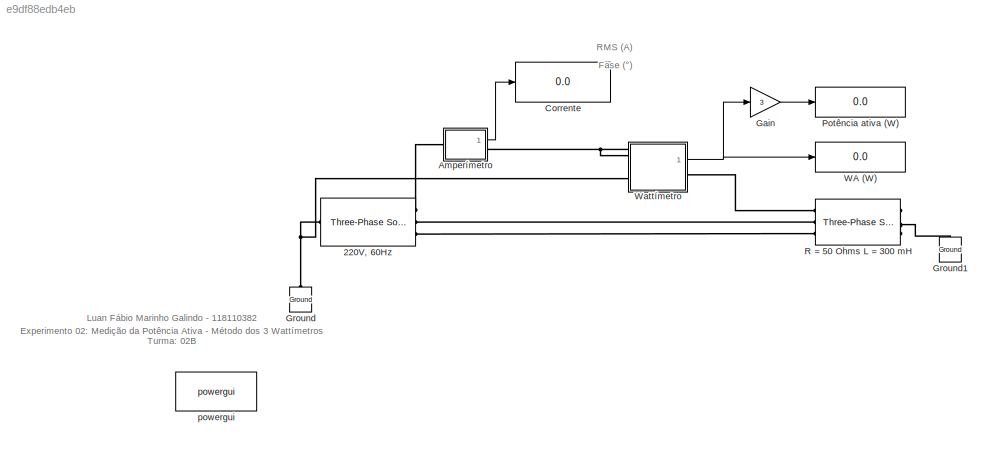
MODEL slx_e9df88edb4eb
KIND model
CONFIG AbsTol = auto
CONFIG EnableMultiTasking = off
CONFIG FixedStep = auto
CONFIG MaxStep = auto
CONFIG MinStep = auto
CONFIG RelTol = 1e-5
CONFIG SampleTimeConstraint = Unconstrained
CONFIG SolverName = ode23t
CONFIG StartTime = 0.0
CONFIG StopTime = 0.1
BLOCK [Reference] 220V, 60Hz  REF=spsThreePhaseSourceLib/Three-Phase Source
  Ports = [0, 0, 0, 0, 0, 1, 3]
  SourceBlock = spsThreePhaseSourceLib/Three-Phase Source
  SourceProductBaseCode = PS
  SourceType = Three-Phase Source
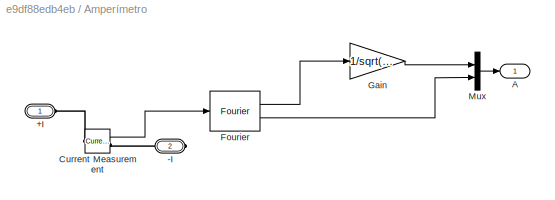
BLOCK [SubSystem] Amperímetro
  Ports = [0, 1, 0, 0, 0, 1, 1]
  RequestExecContextInheritance = off
BLOCK [PMIOPort] Amperímetro/+I
  Side = Left
BLOCK [PMIOPort] Amperímetro/-I
  Port = 2
  Side = Right
BLOCK [Outport] Amperímetro/A
BLOCK [Reference] Amperímetro/Current Measurement  REF=spsCurrentMeasurementLib/Current Measurement
  Ports = [0, 1, 0, 0, 0, 1, 1]
  SourceBlock = spsCurrentMeasurementLib/Current Measurement
  SourceProductBaseCode = PS
  SourceType = Current Measurement
  UserDataPersistent = on
BLOCK [Reference] Amperímetro/Fourier  REF=spsFourierLib/Fourier
  Ports = [1, 2]
  SourceBlock = spsFourierLib/Fourier
  SourceProductBaseCode = PS
  SourceType = Fourier
BLOCK [Gain] Amperímetro/Gain
  Gain = 1/sqrt(2)
BLOCK [Mux] Amperímetro/Mux
  DisplayOption = bar
  Inputs = 2
  Ports = [2, 1]
BLOCK [Display] Corrente
  Decimation = 1
  Format = bank
  Ports = [1]
BLOCK [Gain] Gain
  Gain = 3
BLOCK [Reference] Ground  REF=spsGroundLib/Ground
  NameLocation = right
  Ports = [0, 0, 0, 0, 0, 1]
  SourceBlock = spsGroundLib/Ground
  SourceProductBaseCode = PS
  SourceType = Ground
BLOCK [Reference] Ground1  REF=spsGroundLib/Ground
  NameLocation = right
  Ports = [0, 0, 0, 0, 0, 1]
  SourceBlock = spsGroundLib/Ground
  SourceProductBaseCode = PS
  SourceType = Ground
BLOCK [Display] Potência ativa (W)
  Decimation = 1
  Format = bank
  Ports = [1]
BLOCK [Reference] R = 50 Ohms L = 300 mH  REF=spsThreePhaseSeriesRLCBranchLib/Three-Phase
Series RLC Branch
  AttributesFormatString = \n
  Ports = [0, 0, 0, 0, 0, 3, 3]
  SourceBlock = spsThreePhaseSeriesRLCBranchLib/Three-Phase\nSeries RLC Branch
  SourceProductBaseCode = PS
  SourceType = Three-Phase Series RLC Branch
BLOCK [Display] WA (W)
  Decimation = 1
  Format = bank
  Ports = [1]
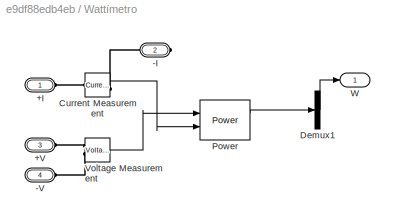
BLOCK [SubSystem] Wattímetro
  Ports = [0, 1, 0, 0, 0, 3, 1]
  RequestExecContextInheritance = off
BLOCK [PMIOPort] Wattímetro/+I
  Side = Left
BLOCK [PMIOPort] Wattímetro/+V
  Port = 3
  Side = Left
BLOCK [PMIOPort] Wattímetro/-I
  Port = 2
  Side = Right
BLOCK [PMIOPort] Wattímetro/-V
  Port = 4
  Side = Left
BLOCK [Reference] Wattímetro/Current Measurement  REF=spsCurrentMeasurementLib/Current Measurement
  Ports = [0, 1, 0, 0, 0, 1, 1]
  SourceBlock = spsCurrentMeasurementLib/Current Measurement
  SourceProductBaseCode = PS
  SourceType = Current Measurement
  UserDataPersistent = on
BLOCK [Demux] Wattímetro/Demux1
  Outputs = 1
  Ports = [1, 1]
BLOCK [Reference] Wattímetro/Power  REF=spsPowerLib/Power
  Ports = [2, 2]
  SourceBlock = spsPowerLib/Power
  SourceProductBaseCode = PS
  SourceType = Power
BLOCK [Reference] Wattímetro/Voltage Measurement  REF=spsVoltageMeasurementLib/Voltage Measurement
  Ports = [0, 1, 0, 0, 0, 2]
  SourceBlock = spsVoltageMeasurementLib/Voltage Measurement
  SourceProductBaseCode = PS
  SourceType = Voltage Measurement
  UserDataPersistent = on
BLOCK [Outport] Wattímetro/W
BLOCK [Reference] powergui   REF=spspowerguiLib/powergui
  Ports = []
  Priority = 1
  SourceBlock = spspowerguiLib/powergui
  SourceProductBaseCode = PS
  SourceType = PSB option menu block
ANNOTATION (root): Experimento 02: Medição da Potência Ativa - Método dos 3 Wattímetros Luan Fábio Marinho Galindo - 118110382 Turma: 02B
ANNOTATION (root): Fase (°)
ANNOTATION (root): RMS (A)
LINE Amperímetro/Current Measurement:1 -> Amperímetro/Fourier:1
LINE Amperímetro/Fourier:1 -> Amperímetro/Gain:1
LINE Amperímetro/Fourier:2 -> Amperímetro/Mux:2
LINE Amperímetro/Gain:1 -> Amperímetro/Mux:1
LINE Amperímetro/Mux:1 -> Amperímetro/A:1
LINE Amperímetro:1 -> Corrente:1
LINE Gain:1 -> Potência ativa (W):1
LINE Wattímetro/Current Measurement:1 -> Wattímetro/Power:2
LINE Wattímetro/Demux1:1 -> Wattímetro/W:1
LINE Wattímetro/Power:1 -> Wattímetro/Demux1:1
LINE Wattímetro/Voltage Measurement:1 -> Wattímetro/Power:1
NET Wattímetro:1 -> Gain:1, WA (W):1
PNET net1: 220V, 60Hz:LConn1 -- Ground:LConn1 -- Wattímetro:LConn3
PLINE 220V, 60Hz:RConn1 -- Amperímetro:LConn1
PLINE 220V, 60Hz:RConn2 -- R = 50 Ohms L = 300 mH:LConn2
PLINE 220V, 60Hz:RConn3 -- R = 50 Ohms L = 300 mH:LConn3
PLINE Amperímetro/+I:RConn1 -- Amperímetro/Current Measurement:LConn1
PLINE Amperímetro/-I:RConn1 -- Amperímetro/Current Measurement:RConn1
PNET net2: Amperímetro:RConn1 -- Wattímetro:LConn1 -- Wattímetro:LConn2
PNET net3: Ground1:LConn1 -- R = 50 Ohms L = 300 mH:RConn1 -- R = 50 Ohms L = 300 mH:RConn2 -- R = 50 Ohms L = 300 mH:RConn3
PLINE R = 50 Ohms L = 300 mH:LConn1 -- Wattímetro:RConn1
PLINE Wattímetro/+I:RConn1 -- Wattímetro/Current Measurement:LConn1
PLINE Wattímetro/+V:RConn1 -- Wattímetro/Voltage Measurement:LConn1
PLINE Wattímetro/-I:RConn1 -- Wattímetro/Current Measurement:RConn1
PLINE Wattímetro/-V:RConn1 -- Wattímetro/Voltage Measurement:LConn2
note: NET lines group one-source signal fan-out (src -> all destinations, sorted); 1:1 wires keep LINE; PNET lines group multi-terminal physical nets as a canonical sorted terminal list (undirected conserving connections); 2-terminal nets keep the pairwise PLINE form
